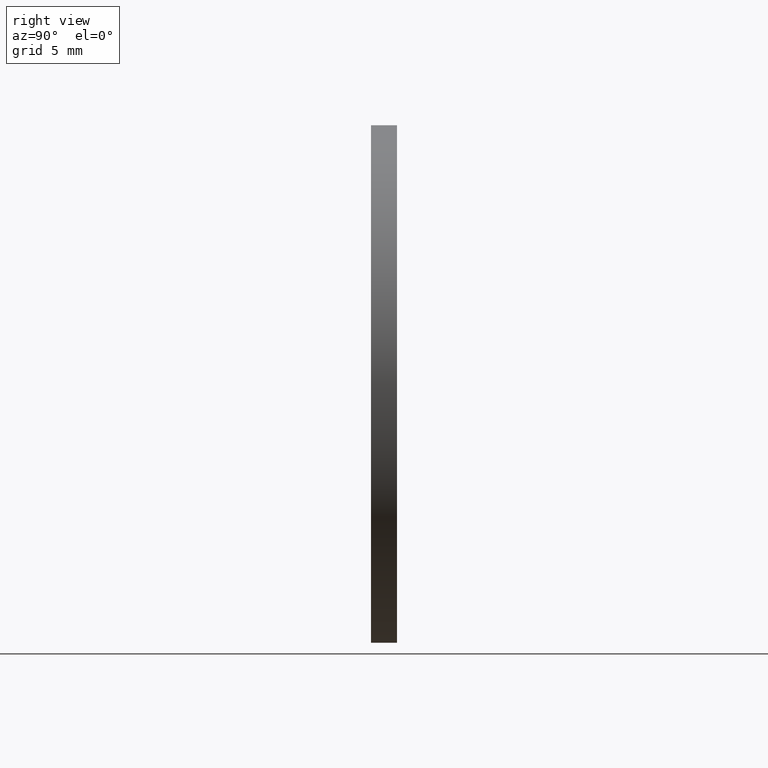
[diagram: clean part render]
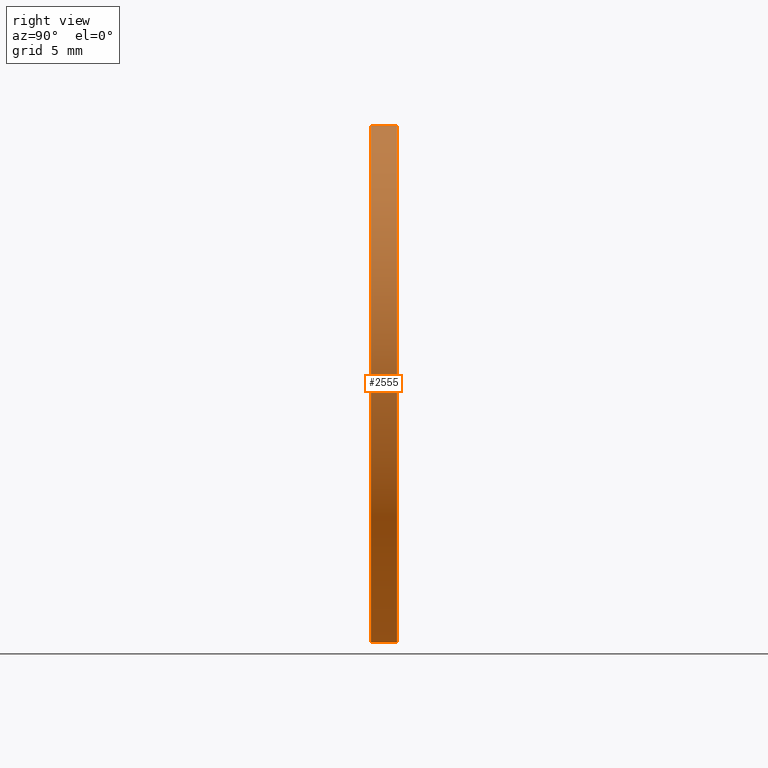
[diagram: same view with one face highlighted and labeled with its STEP entity id]
A machine part, right view. The second image highlights one B-rep face of the part: STEP entity #2555.
In plain terms, the highlighted cylindrical surface (partial cylindrical patch) has radius 15 mm, axis along (-0, -1, -0).
Its self-contained STEP definition (entity closure, byte-faithful):
#198 = VERTEX_POINT ( 'NONE', #8340 ) ;
#423 = CARTESIAN_POINT ( 'NONE',  ( 0.0000000000000000000, 1.500000000000000000, 0.0000000000000000000 ) ) ;
#751 = LINE ( 'NONE', #8683, #9515 ) ;
#858 = AXIS2_PLACEMENT_3D ( 'NONE', #6370, #1771, #5265 ) ;
#1771 = DIRECTION ( 'NONE',  ( 0.0000000000000000000, 1.000000000000000000, 0.0000000000000000000 ) ) ;
#1931 = VERTEX_POINT ( 'NONE', #10859 ) ;
#2073 = CARTESIAN_POINT ( 'NONE',  ( 0.0000000000000000000, 0.0000000000000000000, 0.0000000000000000000 ) ) ;
#2555 = ADVANCED_FACE ( 'NONE', ( #10709 ), #9118, .T. ) ;
#2683 = CIRCLE ( 'NONE', #858, 15.00000000000000000 ) ;
#2975 = CARTESIAN_POINT ( 'NONE',  ( 0.0000000000000000000, 1.500000000000000000, -15.00000000000000000 ) ) ;
#3266 = DIRECTION ( 'NONE',  ( 0.0000000000000000000, 0.0000000000000000000, 1.000000000000000000 ) ) ;
#3898 = EDGE_CURVE ( 'NONE', #5373, #198, #5353, .T. ) ;
#5124 = VERTEX_POINT ( 'NONE', #5165 ) ;
#5165 = CARTESIAN_POINT ( 'NONE',  ( 1.836970198721029600E-015, 1.500000000000000000, 15.00000000000000000 ) ) ;
#5265 = DIRECTION ( 'NONE',  ( 0.0000000000000000000, 0.0000000000000000000, 1.000000000000000000 ) ) ;
#5353 = CIRCLE ( 'NONE', #7759, 15.00000000000000000 ) ;
#5373 = VERTEX_POINT ( 'NONE', #12905 ) ;
#5664 = ORIENTED_EDGE ( 'NONE', *, *, #3898, .T. ) ;
#5933 = ORIENTED_EDGE ( 'NONE', *, *, #11489, .F. ) ;
#6370 = CARTESIAN_POINT ( 'NONE',  ( 0.0000000000000000000, 1.500000000000000000, 0.0000000000000000000 ) ) ;
#7337 = DIRECTION ( 'NONE',  ( -0.0000000000000000000, -1.000000000000000000, -0.0000000000000000000 ) ) ;
#7425 = VECTOR ( 'NONE', #9710, 1000.000000000000000 ) ;
#7759 = AXIS2_PLACEMENT_3D ( 'NONE', #2073, #13563, #3266 ) ;
#8109 = AXIS2_PLACEMENT_3D ( 'NONE', #423, #7337, #10787 ) ;
#8260 = EDGE_CURVE ( 'NONE', #5124, #5373, #751, .T. ) ;
#8340 = CARTESIAN_POINT ( 'NONE',  ( 0.0000000000000000000, 0.0000000000000000000, -15.00000000000000000 ) ) ;
#8631 = DIRECTION ( 'NONE',  ( -0.0000000000000000000, -1.000000000000000000, -0.0000000000000000000 ) ) ;
#8683 = CARTESIAN_POINT ( 'NONE',  ( 1.836970198721029600E-015, 1.500000000000000000, 15.00000000000000000 ) ) ;
#9118 = CYLINDRICAL_SURFACE ( 'NONE', #8109, 15.00000000000000000 ) ;
#9515 = VECTOR ( 'NONE', #8631, 1000.000000000000000 ) ;
#9710 = DIRECTION ( 'NONE',  ( -0.0000000000000000000, -1.000000000000000000, -0.0000000000000000000 ) ) ;
#9846 = EDGE_CURVE ( 'NONE', #5124, #1931, #2683, .T. ) ;
#10267 = ORIENTED_EDGE ( 'NONE', *, *, #8260, .T. ) ;
#10709 = FACE_OUTER_BOUND ( 'NONE', #13862, .T. ) ;
#10787 = DIRECTION ( 'NONE',  ( 0.0000000000000000000, 0.0000000000000000000, -1.000000000000000000 ) ) ;
#10859 = CARTESIAN_POINT ( 'NONE',  ( 0.0000000000000000000, 1.500000000000000000, -15.00000000000000000 ) ) ;
#11350 = ORIENTED_EDGE ( 'NONE', *, *, #9846, .F. ) ;
#11489 = EDGE_CURVE ( 'NONE', #1931, #198, #14596, .T. ) ;
#12905 = CARTESIAN_POINT ( 'NONE',  ( 1.836970198721029600E-015, 0.0000000000000000000, 15.00000000000000000 ) ) ;
#13563 = DIRECTION ( 'NONE',  ( 0.0000000000000000000, 1.000000000000000000, 0.0000000000000000000 ) ) ;
#13862 = EDGE_LOOP ( 'NONE', ( #11350, #10267, #5664, #5933 ) ) ;
#14596 = LINE ( 'NONE', #2975, #7425 ) ;